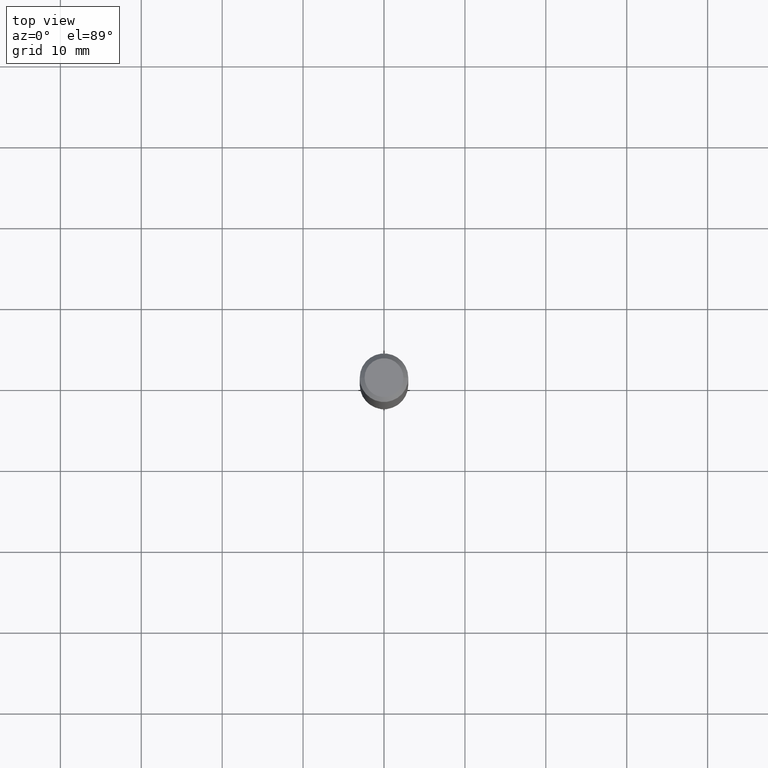
[diagram: clean part render]
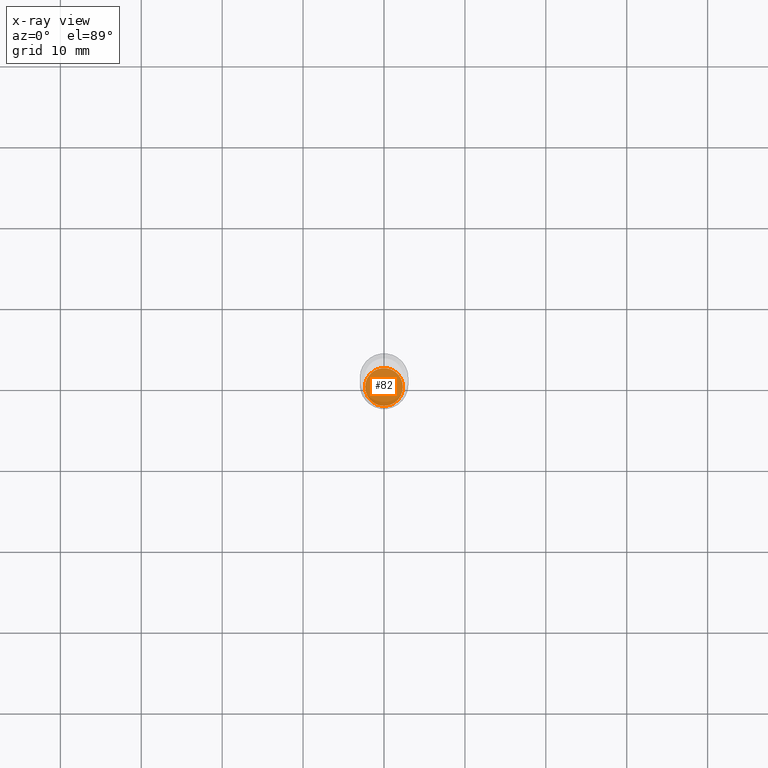
[diagram: x-ray — body ghosted, one internal face saturated and labeled with its STEP entity id]
A machine part, top view, then the same camera in x-ray: the body is ghosted and one INTERNAL B-rep face — a face not visible from any outside direction — is saturated and labeled: STEP entity #82.
In plain terms, the highlighted planar face has unit normal (-0, 0, 1).
Its self-contained STEP definition (entity closure, byte-faithful):
#2 = ORIENTED_EDGE ( 'NONE', *, *, #515, .F. ) ;
#30 = DIRECTION ( 'NONE',  ( -2.445468806185136597E-29, 3.491481338843145583E-15, 1.000000000000000000 ) ) ;
#54 = VERTEX_POINT ( 'NONE', #165 ) ;
#82 = ADVANCED_FACE ( 'NONE', ( #319 ), #287, .F. ) ;
#109 = VERTEX_POINT ( 'NONE', #369 ) ;
#141 = DIRECTION ( 'NONE',  ( 1.000000000000000000, -6.982962677686269866E-15, 0.000000000000000000 ) ) ;
#146 = DIRECTION ( 'NONE',  ( 1.000000000000000000, -6.982962677686269866E-15, 0.000000000000000000 ) ) ;
#155 = DIRECTION ( 'NONE',  ( -2.445468806185136597E-29, 3.491481338843145583E-15, 1.000000000000000000 ) ) ;
#165 = CARTESIAN_POINT ( 'NONE',  ( 0.09199999999999999845, -9.854007782617007953E-15, -2.638300000000000090 ) ) ;
#202 = AXIS2_PLACEMENT_3D ( 'NONE', #224, #30, #146 ) ;
#224 = CARTESIAN_POINT ( 'NONE',  ( 6.451880351358246032E-29, -9.211575216269870974E-15, -2.638300000000000090 ) ) ;
#234 = CIRCLE ( 'NONE', #345, 0.09199999999999999845 ) ;
#235 = DIRECTION ( 'NONE',  ( -2.438088387897960049E-29, 3.491481338843145188E-15, 1.000000000000000000 ) ) ;
#241 = CARTESIAN_POINT ( 'NONE',  ( 6.451880351358246032E-29, -9.211575216269870974E-15, -2.638300000000000090 ) ) ;
#287 = PLANE ( 'NONE',  #310 ) ;
#303 = CIRCLE ( 'NONE', #202, 0.09199999999999999845 ) ;
#310 = AXIS2_PLACEMENT_3D ( 'NONE', #241, #235, #409 ) ;
#313 = CARTESIAN_POINT ( 'NONE',  ( 6.451880351358246032E-29, -9.211575216269870974E-15, -2.638300000000000090 ) ) ;
#319 = FACE_OUTER_BOUND ( 'NONE', #447, .T. ) ;
#327 = ORIENTED_EDGE ( 'NONE', *, *, #415, .F. ) ;
#345 = AXIS2_PLACEMENT_3D ( 'NONE', #313, #155, #141 ) ;
#369 = CARTESIAN_POINT ( 'NONE',  ( -0.09199999999999999845, -8.555226672196466232E-15, -2.638300000000000090 ) ) ;
#409 = DIRECTION ( 'NONE',  ( 1.000000000000000000, -6.982962677686265922E-15, 4.876176775795935793E-29 ) ) ;
#415 = EDGE_CURVE ( 'NONE', #54, #109, #234, .T. ) ;
#447 = EDGE_LOOP ( 'NONE', ( #327, #2 ) ) ;
#515 = EDGE_CURVE ( 'NONE', #109, #54, #303, .T. ) ;